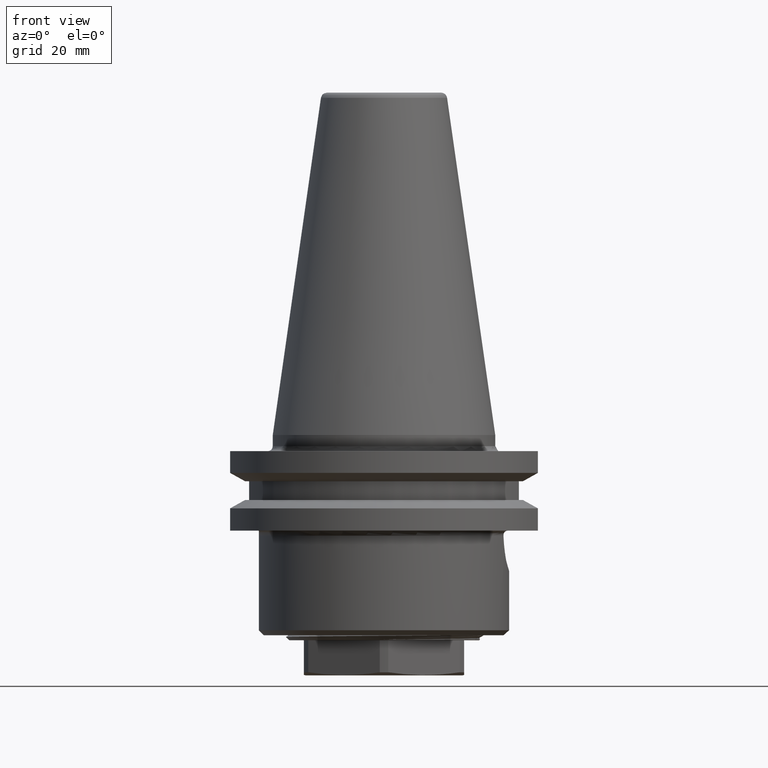
[diagram: clean part render]
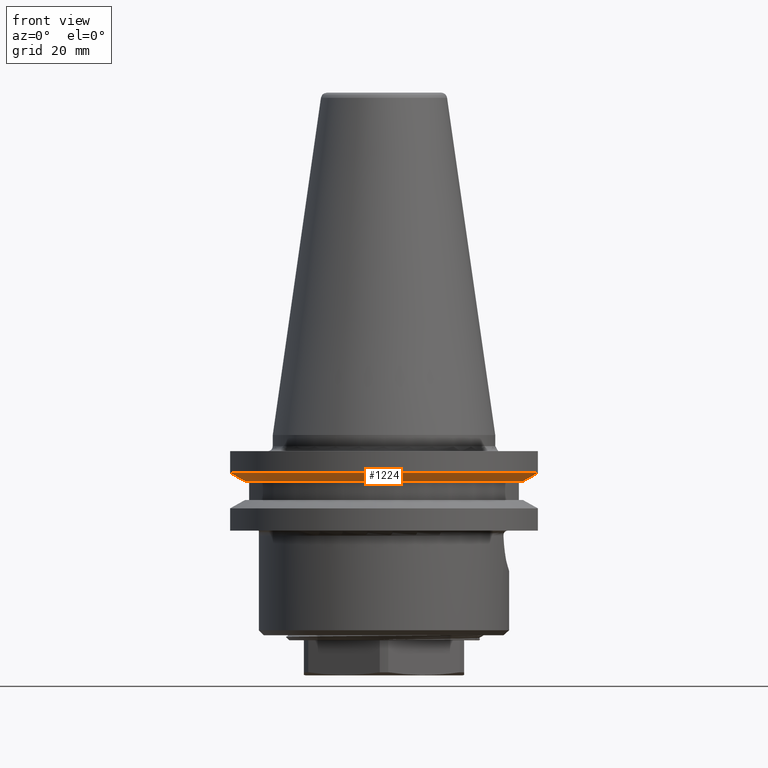
[diagram: same view with one face highlighted and labeled with its STEP entity id]
A machine part, front view. The second image highlights one B-rep face of the part: STEP entity #1224.
In plain terms, the highlighted conical surface has half-angle 60 deg.
Its self-contained STEP definition (entity closure, byte-faithful):
#233=B_SPLINE_CURVE_WITH_KNOTS('',3,(#2298,#2299,#2300,#2301),
 .UNSPECIFIED.,.F.,.F.,(4,4),(0.0110704362932127,0.0144836265961469),
 .UNSPECIFIED.);
#234=B_SPLINE_CURVE_WITH_KNOTS('',3,(#2305,#2306,#2307,#2308),
 .UNSPECIFIED.,.F.,.F.,(4,4),(0.00710621087724354,0.010519497220685),
 .UNSPECIFIED.);
#253=CONICAL_SURFACE('',#1335,28.8997448887957,1.0471975511966);
#390=ORIENTED_EDGE('',*,*,#699,.F.);
#391=ORIENTED_EDGE('',*,*,#700,.T.);
#392=ORIENTED_EDGE('',*,*,#701,.T.);
#393=ORIENTED_EDGE('',*,*,#702,.T.);
#699=EDGE_CURVE('',#857,#858,#949,.T.);
#700=EDGE_CURVE('',#857,#859,#233,.T.);
#701=EDGE_CURVE('',#859,#860,#950,.T.);
#702=EDGE_CURVE('',#860,#858,#234,.T.);
#857=VERTEX_POINT('',#2296);
#858=VERTEX_POINT('',#2297);
#859=VERTEX_POINT('',#2302);
#860=VERTEX_POINT('',#2304);
#949=CIRCLE('',#1336,28.8997448887957);
#950=CIRCLE('',#1337,31.775);
#1014=EDGE_LOOP('',(#390,#391,#392,#393));
#1105=FACE_BOUND('',#1014,.T.);
#1224=ADVANCED_FACE('',(#1105),#253,.T.);
#1335=AXIS2_PLACEMENT_3D('',#2294,#1547,#1548);
#1336=AXIS2_PLACEMENT_3D('',#2295,#1549,#1550);
#1337=AXIS2_PLACEMENT_3D('',#2303,#1551,#1552);
#1547=DIRECTION('',(0.,0.,1.));
#1548=DIRECTION('',(1.,0.,0.));
#1549=DIRECTION('',(0.,0.,-1.));
#1550=DIRECTION('',(-1.,0.,0.));
#1551=DIRECTION('',(0.,0.,-1.));
#1552=DIRECTION('',(-1.,0.,0.));
#2294=CARTESIAN_POINT('',(0.,0.,-9.22375891365622));
#2295=CARTESIAN_POINT('',(0.,0.,-9.22375891365622));
#2296=CARTESIAN_POINT('',(27.7559498961479,-8.05,-9.22375891365622));
#2297=CARTESIAN_POINT('',(-27.7559498961479,-8.05,-9.22375891365622));
#2298=CARTESIAN_POINT('',(27.7559498961479,-8.05,-9.22375891365622));
#2299=CARTESIAN_POINT('',(28.750970463934,-8.05,-8.67202012576683));
#2300=CARTESIAN_POINT('',(29.745036700074,-8.05000000000001,-8.11852779212219));
#2301=CARTESIAN_POINT('',(30.7383819515602,-8.05000000000001,-7.56372960121354));
#2302=CARTESIAN_POINT('',(30.7383819515602,-8.05000000000001,-7.56372960121354));
#2303=CARTESIAN_POINT('',(0.,0.,-7.56372960121354));
#2304=CARTESIAN_POINT('',(-30.7383819515602,-8.05000000000001,-7.56372960121354));
#2305=CARTESIAN_POINT('',(-30.7383819515602,-8.05000000000001,-7.56372960121354));
#2306=CARTESIAN_POINT('',(-29.7450488642674,-8.05000000000001,-8.11852099823811));
#2307=CARTESIAN_POINT('',(-28.7509870554538,-8.05,-8.67201092577106));
#2308=CARTESIAN_POINT('',(-27.7559498961479,-8.05,-9.22375891365622));